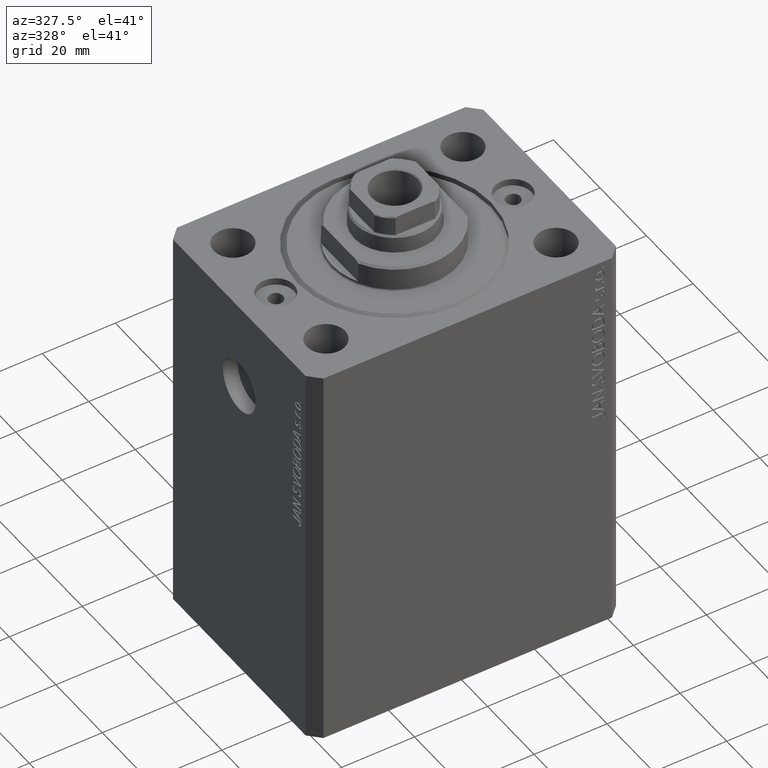
[diagram: clean part render]
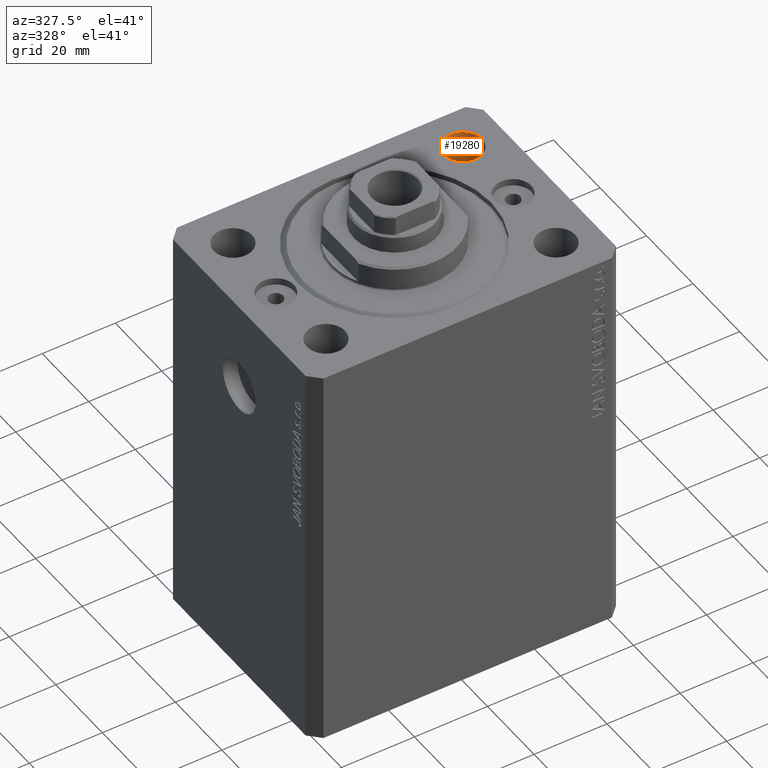
[diagram: same view with one face highlighted and labeled with its STEP entity id]
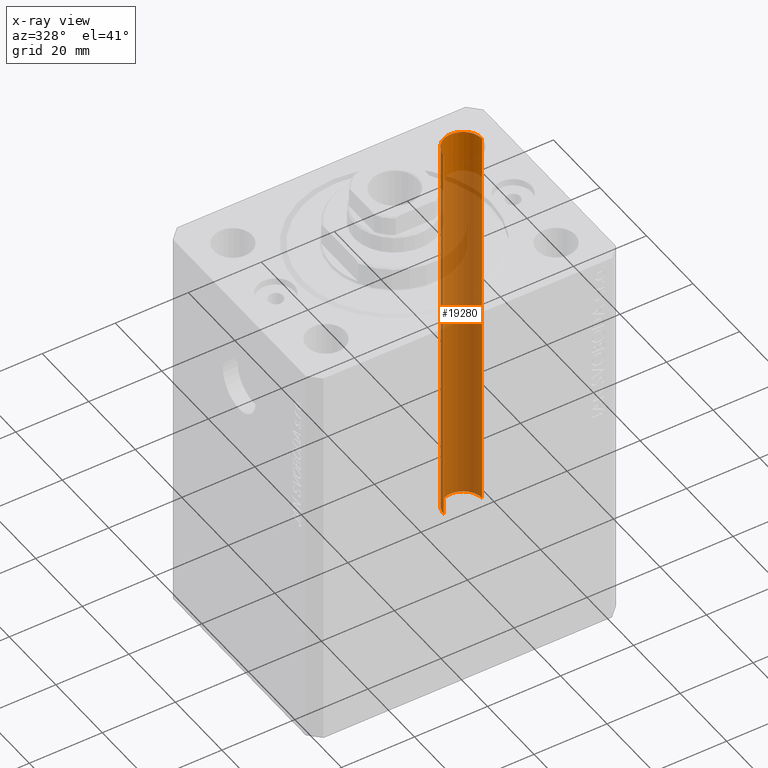
[diagram: x-ray of the same camera — body ghosted, the highlighted face saturated]
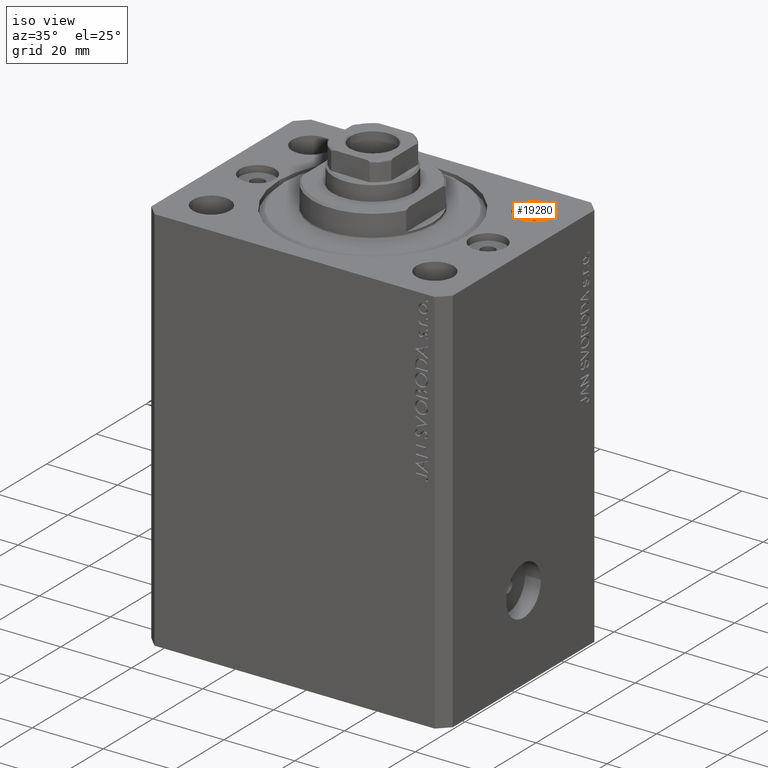
[diagram: same view with one face highlighted and labeled with its STEP entity id]
A machine part, auxiliary view. The second image highlights one B-rep face of the part: STEP entity #19280.
The next image is the same camera in x-ray: the body ghosted, the highlighted face saturated — about 89% of this face is hidden behind the body in this view.
A second angle (iso view) of the same face is appended — the face is thin or edge-on in the first view.
In plain terms, the highlighted cylindrical surface (edge-blend (fillet) strip) has radius 5.25 mm, axis along (0, 0, 1).
Its self-contained STEP definition (entity closure, byte-faithful):
#1763 = LINE ( 'NONE', #2002, #36366 ) ;
#2002 = CARTESIAN_POINT ( 'NONE',  ( 36.75000000000000000, 19.99999999999999289, -124.8492424049175042 ) ) ;
#2994 = VECTOR ( 'NONE', #7796, 1000.000000000000000 ) ;
#3193 = CARTESIAN_POINT ( 'NONE',  ( 31.50000000000000000, 19.99999999999999289, -110.0000000000000000 ) ) ;
#3498 = CARTESIAN_POINT ( 'NONE',  ( 26.25000000000000355, 19.99999999999999289, -124.8492424049175042 ) ) ;
#5074 = CARTESIAN_POINT ( 'NONE',  ( 26.25000000000000355, 19.99999999999999289, 0.000000000000000000 ) ) ;
#5449 = DIRECTION ( 'NONE',  ( 1.000000000000000000, 0.000000000000000000, 0.000000000000000000 ) ) ;
#5536 = EDGE_LOOP ( 'NONE', ( #11148, #9519, #35049, #6703 ) ) ;
#6533 = DIRECTION ( 'NONE',  ( 1.000000000000000000, 0.000000000000000000, 0.000000000000000000 ) ) ;
#6588 = EDGE_CURVE ( 'NONE', #37209, #29611, #1763, .T. ) ;
#6703 = ORIENTED_EDGE ( 'NONE', *, *, #13686, .T. ) ;
#6925 = AXIS2_PLACEMENT_3D ( 'NONE', #34598, #15967, #5449 ) ;
#7796 = DIRECTION ( 'NONE',  ( -0.000000000000000000, -0.000000000000000000, 1.000000000000000000 ) ) ;
#8642 = CARTESIAN_POINT ( 'NONE',  ( 36.75000000000000000, 19.99999999999999289, -110.0000000000000000 ) ) ;
#9519 = ORIENTED_EDGE ( 'NONE', *, *, #39041, .T. ) ;
#11148 = ORIENTED_EDGE ( 'NONE', *, *, #23685, .F. ) ;
#12582 = CARTESIAN_POINT ( 'NONE',  ( 36.75000000000000000, 19.99999999999999289, 0.000000000000000000 ) ) ;
#13686 = EDGE_CURVE ( 'NONE', #29611, #40072, #44318, .T. ) ;
#15062 = CARTESIAN_POINT ( 'NONE',  ( 31.50000000000000000, 19.99999999999999289, -124.8492424049175042 ) ) ;
#15967 = DIRECTION ( 'NONE',  ( 0.000000000000000000, 0.000000000000000000, 1.000000000000000000 ) ) ;
#19280 = ADVANCED_FACE ( 'NONE', ( #46832 ), #40376, .F. ) ;
#21652 = AXIS2_PLACEMENT_3D ( 'NONE', #3193, #24691, #6533 ) ;
#23685 = EDGE_CURVE ( 'NONE', #45914, #40072, #32873, .T. ) ;
#24691 = DIRECTION ( 'NONE',  ( -0.000000000000000000, -0.000000000000000000, -1.000000000000000000 ) ) ;
#29564 = AXIS2_PLACEMENT_3D ( 'NONE', #15062, #44206, #40613 ) ;
#29611 = VERTEX_POINT ( 'NONE', #12582 ) ;
#30126 = CARTESIAN_POINT ( 'NONE',  ( 26.25000000000000355, 19.99999999999999289, -110.0000000000000000 ) ) ;
#31634 = DIRECTION ( 'NONE',  ( -0.000000000000000000, -0.000000000000000000, 1.000000000000000000 ) ) ;
#32873 = LINE ( 'NONE', #3498, #2994 ) ;
#34598 = CARTESIAN_POINT ( 'NONE',  ( 31.50000000000000000, 19.99999999999999289, 0.000000000000000000 ) ) ;
#35049 = ORIENTED_EDGE ( 'NONE', *, *, #6588, .T. ) ;
#36366 = VECTOR ( 'NONE', #31634, 1000.000000000000000 ) ;
#37209 = VERTEX_POINT ( 'NONE', #8642 ) ;
#38389 = CIRCLE ( 'NONE', #21652, 5.249999999999997335 ) ;
#39041 = EDGE_CURVE ( 'NONE', #45914, #37209, #38389, .T. ) ;
#40072 = VERTEX_POINT ( 'NONE', #5074 ) ;
#40376 = CYLINDRICAL_SURFACE ( 'NONE', #29564, 5.249999999999997335 ) ;
#40613 = DIRECTION ( 'NONE',  ( 1.000000000000000000, 0.000000000000000000, 0.000000000000000000 ) ) ;
#44206 = DIRECTION ( 'NONE',  ( -0.000000000000000000, -0.000000000000000000, 1.000000000000000000 ) ) ;
#44318 = CIRCLE ( 'NONE', #6925, 5.249999999999997335 ) ;
#45914 = VERTEX_POINT ( 'NONE', #30126 ) ;
#46832 = FACE_OUTER_BOUND ( 'NONE', #5536, .T. ) ;